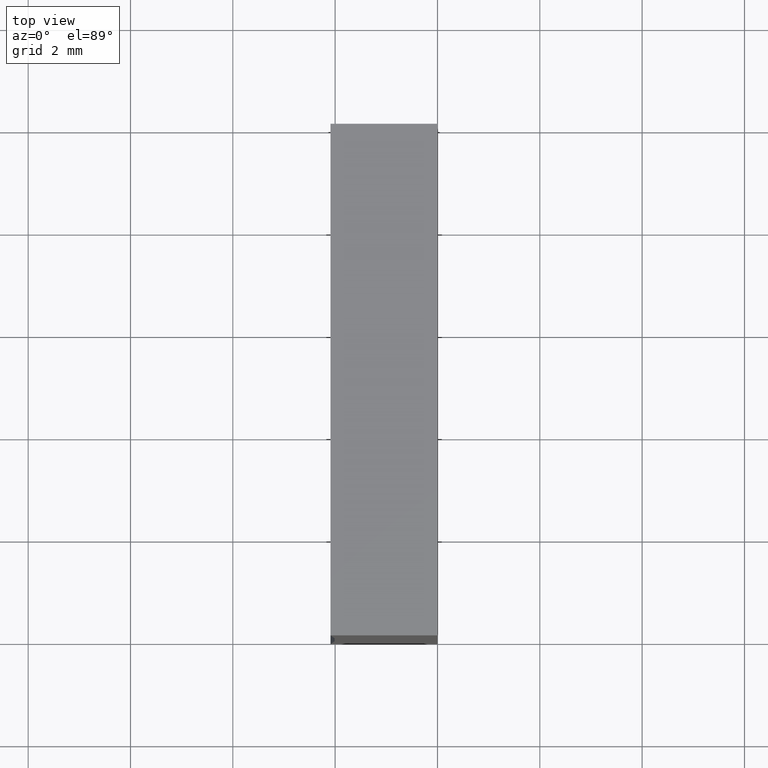
[diagram: clean part render]
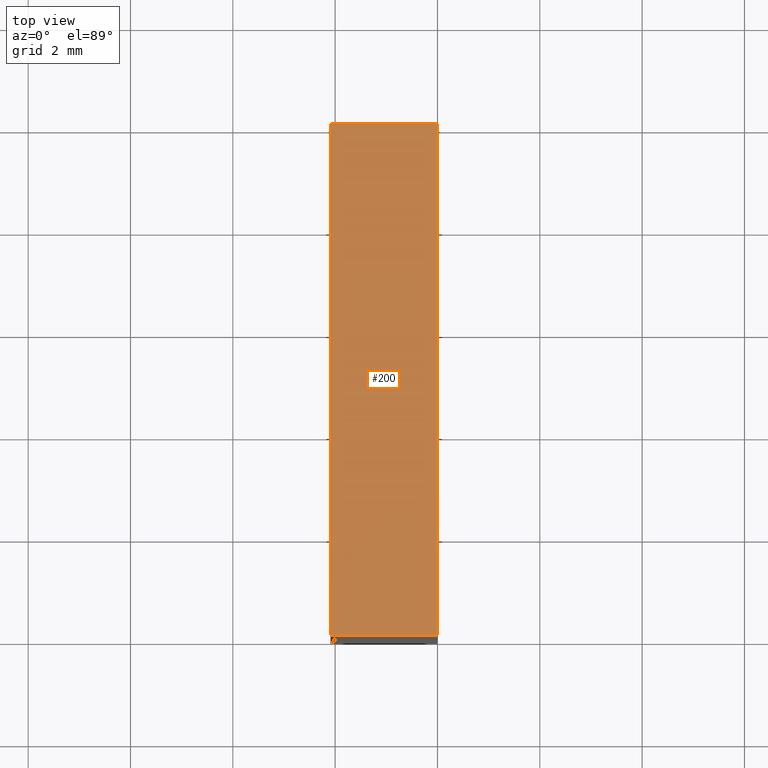
[diagram: same view with one face highlighted and labeled with its STEP entity id]
A machine part, top view. The second image highlights one B-rep face of the part: STEP entity #200.
In plain terms, the highlighted planar face has unit normal (0, 0, -1).
Its self-contained STEP definition (entity closure, byte-faithful):
#2 = CARTESIAN_POINT ( 'NONE',  ( -2.090906084755539000, 10.00000000000000000, 9.999999999999998200 ) ) ;
#6 = VERTEX_POINT ( 'NONE', #71 ) ;
#26 = LINE ( 'NONE', #97, #134 ) ;
#42 = CARTESIAN_POINT ( 'NONE',  ( 6.123233995736766300E-016, 0.0000000000000000000, 10.00000000000000000 ) ) ;
#50 = DIRECTION ( 'NONE',  ( 1.000000000000000000, -0.0000000000000000000, 8.296515508871476500E-016 ) ) ;
#59 = VERTEX_POINT ( 'NONE', #175 ) ;
#64 = CARTESIAN_POINT ( 'NONE',  ( 6.123233995736766300E-016, 0.0000000000000000000, 10.00000000000000000 ) ) ;
#65 = DIRECTION ( 'NONE',  ( -0.0000000000000000000, -1.000000000000000000, -0.0000000000000000000 ) ) ;
#69 = LINE ( 'NONE', #167, #181 ) ;
#70 = EDGE_CURVE ( 'NONE', #201, #6, #26, .T. ) ;
#71 = CARTESIAN_POINT ( 'NONE',  ( 6.123233995736766300E-016, 10.00000000000000000, 10.00000000000000000 ) ) ;
#76 = FACE_OUTER_BOUND ( 'NONE', #193, .T. ) ;
#87 = ORIENTED_EDGE ( 'NONE', *, *, #146, .T. ) ;
#90 = ORIENTED_EDGE ( 'NONE', *, *, #70, .F. ) ;
#95 = PLANE ( 'NONE',  #106 ) ;
#96 = DIRECTION ( 'NONE',  ( -1.000000000000000000, 0.0000000000000000000, -8.296515508871477500E-016 ) ) ;
#97 = CARTESIAN_POINT ( 'NONE',  ( 6.123233995736766300E-016, 10.00000000000000000, 10.00000000000000000 ) ) ;
#106 = AXIS2_PLACEMENT_3D ( 'NONE', #197, #183, #96 ) ;
#121 = VECTOR ( 'NONE', #158, 1000.000000000000000 ) ;
#130 = DIRECTION ( 'NONE',  ( -0.0000000000000000000, -1.000000000000000000, -0.0000000000000000000 ) ) ;
#134 = VECTOR ( 'NONE', #50, 1000.000000000000000 ) ;
#136 = EDGE_CURVE ( 'NONE', #6, #184, #169, .T. ) ;
#142 = ORIENTED_EDGE ( 'NONE', *, *, #136, .F. ) ;
#146 = EDGE_CURVE ( 'NONE', #59, #184, #147, .T. ) ;
#147 = LINE ( 'NONE', #42, #121 ) ;
#158 = DIRECTION ( 'NONE',  ( 1.000000000000000000, -0.0000000000000000000, 8.296515508871476500E-016 ) ) ;
#167 = CARTESIAN_POINT ( 'NONE',  ( -2.090906084755539000, 10.00000000000000000, 9.999999999999998200 ) ) ;
#169 = LINE ( 'NONE', #180, #202 ) ;
#175 = CARTESIAN_POINT ( 'NONE',  ( -2.090906084755539000, 0.0000000000000000000, 9.999999999999998200 ) ) ;
#179 = ORIENTED_EDGE ( 'NONE', *, *, #190, .T. ) ;
#180 = CARTESIAN_POINT ( 'NONE',  ( 6.123233995736766300E-016, 10.00000000000000000, 10.00000000000000000 ) ) ;
#181 = VECTOR ( 'NONE', #65, 1000.000000000000000 ) ;
#183 = DIRECTION ( 'NONE',  ( 8.296515508871477500E-016, 0.0000000000000000000, -1.000000000000000000 ) ) ;
#184 = VERTEX_POINT ( 'NONE', #64 ) ;
#190 = EDGE_CURVE ( 'NONE', #201, #59, #69, .T. ) ;
#193 = EDGE_LOOP ( 'NONE', ( #87, #142, #90, #179 ) ) ;
#197 = CARTESIAN_POINT ( 'NONE',  ( 6.123233995736766300E-016, 10.00000000000000000, 10.00000000000000000 ) ) ;
#200 = ADVANCED_FACE ( 'NONE', ( #76 ), #95, .F. ) ;
#201 = VERTEX_POINT ( 'NONE', #2 ) ;
#202 = VECTOR ( 'NONE', #130, 1000.000000000000000 ) ;